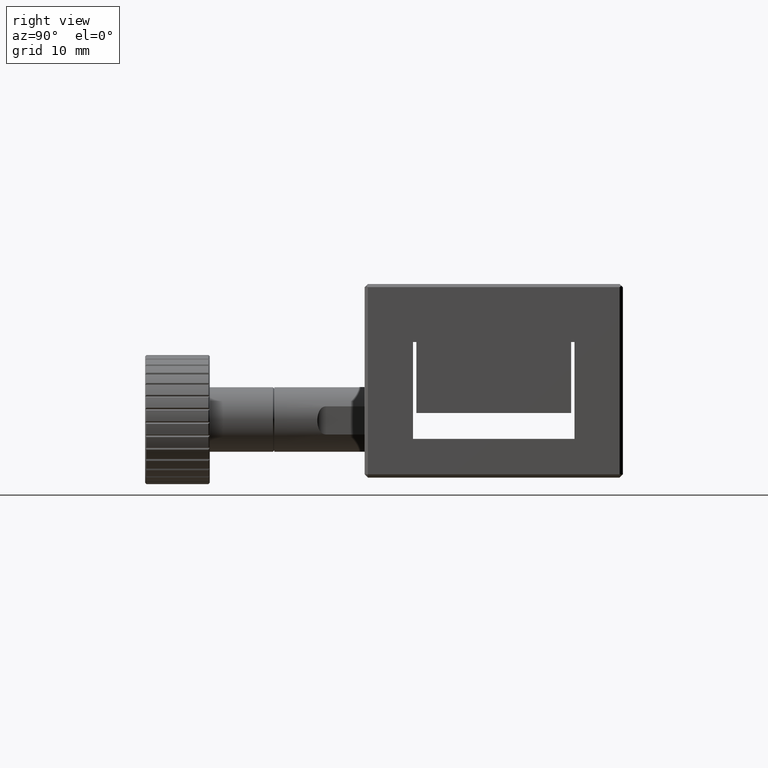
[diagram: clean part render]
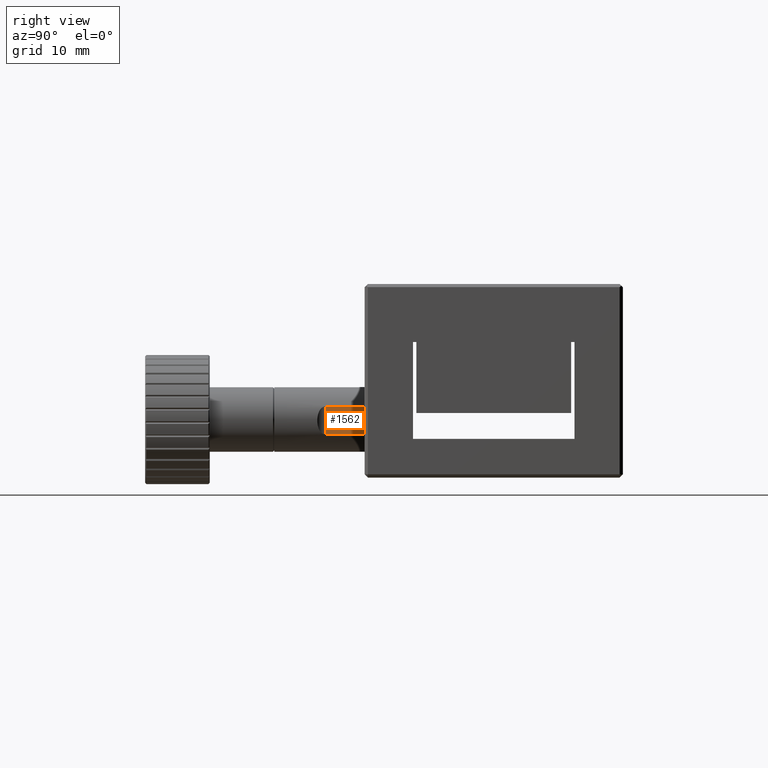
[diagram: same view with one face highlighted and labeled with its STEP entity id]
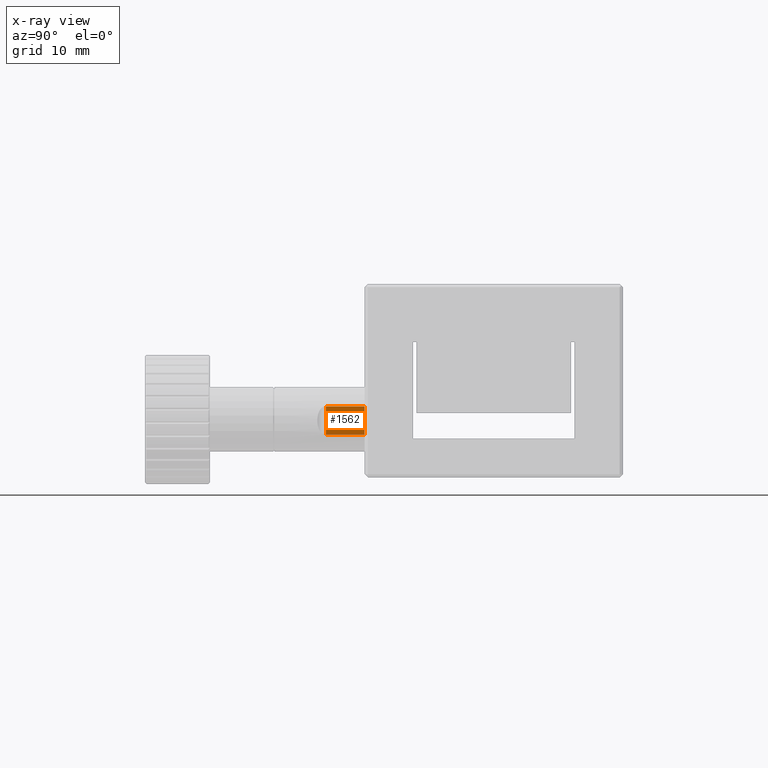
[diagram: x-ray of the same camera — body ghosted, the highlighted face saturated]
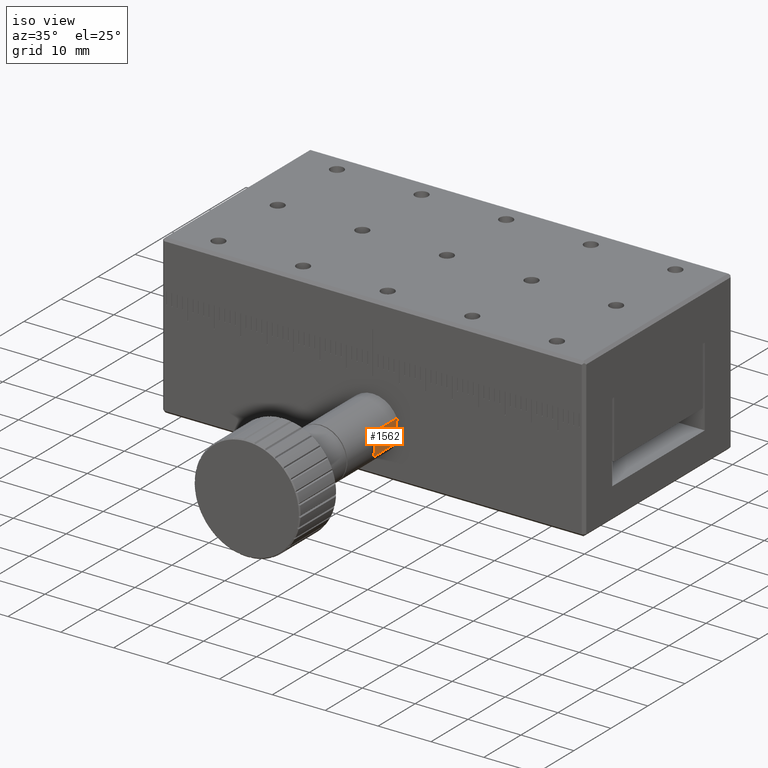
[diagram: same view with one face highlighted and labeled with its STEP entity id]
A machine part, right view. The second image highlights one B-rep face of the part: STEP entity #1562.
The next image is the same camera in x-ray: the body ghosted, the highlighted face saturated — about 0% of this face is hidden behind the body in this view.
A second angle (iso view) of the same face is appended — the face is thin or edge-on in the first view.
In plain terms, the highlighted planar face has unit normal (-0.9995, 0, 0.0313).
Its self-contained STEP definition (entity closure, byte-faithful):
#909 = VECTOR ( 'NONE', #11610, 1000.000000000000100 ) ;
#1085 = ORIENTED_EDGE ( 'NONE', *, *, #16397, .T. ) ;
#1488 = AXIS2_PLACEMENT_3D ( 'NONE', #13485, #19935, #8642 ) ;
#1503 = ORIENTED_EDGE ( 'NONE', *, *, #20697, .F. ) ;
#1534 = CARTESIAN_POINT ( 'NONE',  ( 4.414028552705742600, -20.00000000000000000, 6.681170204700660700 ) ) ;
#1562 = ADVANCED_FACE ( 'NONE', ( #2764 ), #7102, .F. ) ;
#2310 = LINE ( 'NONE', #10834, #14727 ) ;
#2441 = VERTEX_POINT ( 'NONE', #15615 ) ;
#2764 = FACE_OUTER_BOUND ( 'NONE', #12247, .T. ) ;
#5235 = DIRECTION ( 'NONE',  ( 0.0000000000000000000, -1.000000000000000000, 0.0000000000000000000 ) ) ;
#6792 = CARTESIAN_POINT ( 'NONE',  ( 4.482167917000000800, -26.00000000000000400, 8.859554245000000000 ) ) ;
#7102 = PLANE ( 'NONE',  #1488 ) ;
#7935 = VERTEX_POINT ( 'NONE', #1534 ) ;
#8458 = LINE ( 'NONE', #12117, #16548 ) ;
#8642 = DIRECTION ( 'NONE',  ( 0.0000000000000000000, 1.000000000000000000, 0.0000000000000000000 ) ) ;
#9128 = VERTEX_POINT ( 'NONE', #18217 ) ;
#9675 = ORIENTED_EDGE ( 'NONE', *, *, #16970, .F. ) ;
#10035 = CARTESIAN_POINT ( 'NONE',  ( 4.550307283369197500, -26.00000000000000400, 11.03793828412322100 ) ) ;
#10484 = CARTESIAN_POINT ( 'NONE',  ( 4.414028552303459900, -26.00000000000000400, 6.681170204548222600 ) ) ;
#10834 = CARTESIAN_POINT ( 'NONE',  ( 4.482167917000000800, -20.00000000000000000, 8.859554245000000000 ) ) ;
#11610 = DIRECTION ( 'NONE',  ( 0.03126448485788262100, -0.0000000000000000000, 0.9995111465044155300 ) ) ;
#12117 = CARTESIAN_POINT ( 'NONE',  ( 4.414028553296284400, -26.00000000000000400, 6.681170205828654400 ) ) ;
#12247 = EDGE_LOOP ( 'NONE', ( #19740, #1503, #1085, #9675 ) ) ;
#13352 = LINE ( 'NONE', #6792, #909 ) ;
#13485 = CARTESIAN_POINT ( 'NONE',  ( 4.550307282000000300, -26.00000000000000400, 11.03793828499999900 ) ) ;
#13708 = DIRECTION ( 'NONE',  ( -0.0000000000000000000, 1.000000000000000000, -0.0000000000000000000 ) ) ;
#14727 = VECTOR ( 'NONE', #15643, 1000.000000000000100 ) ;
#15615 = CARTESIAN_POINT ( 'NONE',  ( 4.550307282716625300, -26.00000000000000400, 11.03793828558546500 ) ) ;
#15643 = DIRECTION ( 'NONE',  ( -0.03126448478461116300, 0.0000000000000000000, -0.9995111465067073600 ) ) ;
#16397 = EDGE_CURVE ( 'NONE', #18246, #7935, #8458, .T. ) ;
#16548 = VECTOR ( 'NONE', #13708, 1000.000000000000000 ) ;
#16662 = VECTOR ( 'NONE', #5235, 1000.000000000000000 ) ;
#16970 = EDGE_CURVE ( 'NONE', #9128, #7935, #2310, .T. ) ;
#18217 = CARTESIAN_POINT ( 'NONE',  ( 4.550307282641936600, -20.00000000000000000, 11.03793828575282500 ) ) ;
#18246 = VERTEX_POINT ( 'NONE', #10484 ) ;
#19740 = ORIENTED_EDGE ( 'NONE', *, *, #20719, .T. ) ;
#19935 = DIRECTION ( 'NONE',  ( -0.9995111465044155300, 0.0000000000000000000, 0.03126448485788262100 ) ) ;
#20697 = EDGE_CURVE ( 'NONE', #18246, #2441, #13352, .T. ) ;
#20719 = EDGE_CURVE ( 'NONE', #9128, #2441, #20921, .T. ) ;
#20921 = LINE ( 'NONE', #10035, #16662 ) ;